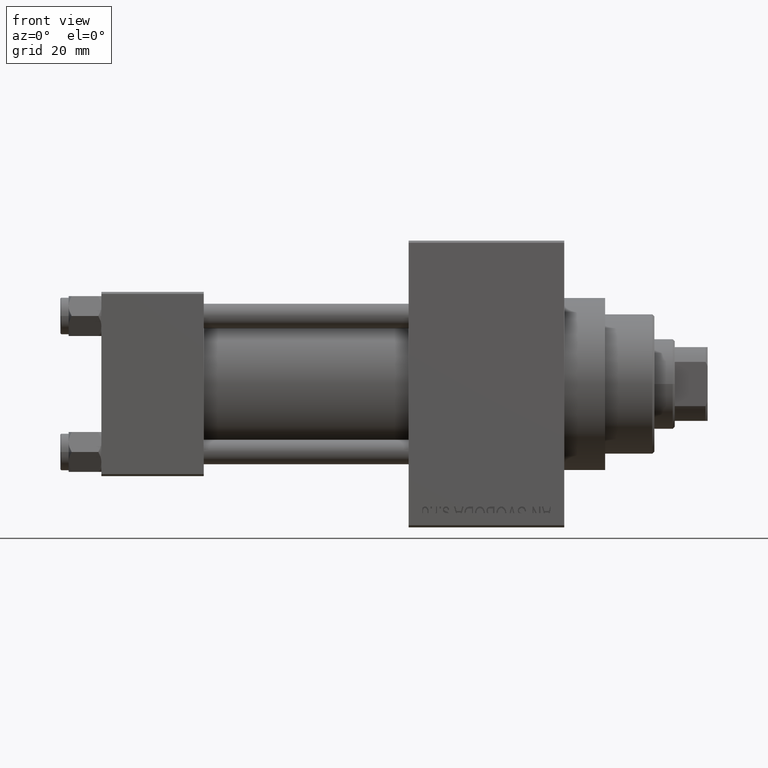
[diagram: clean part render]
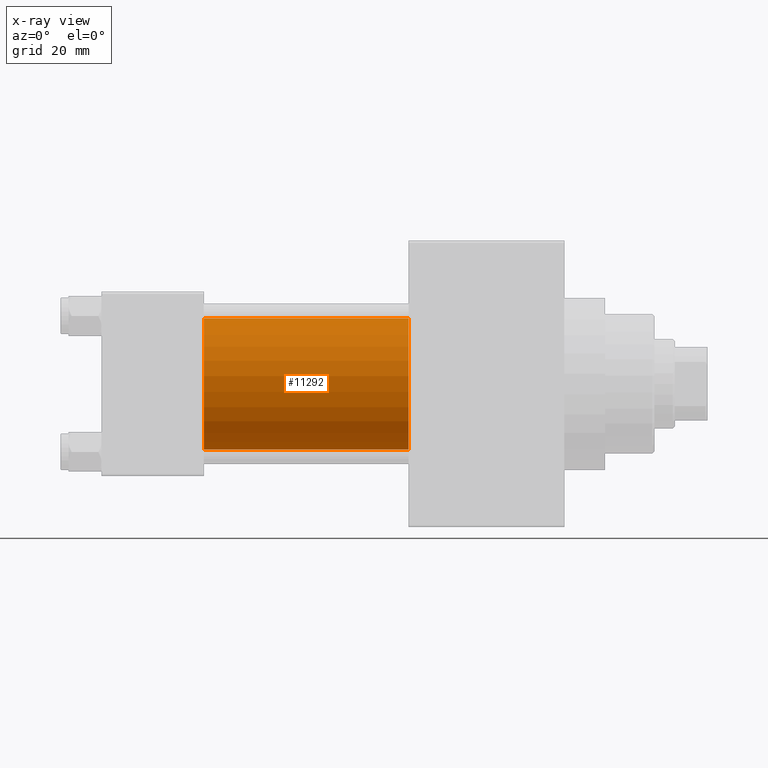
[diagram: x-ray — body ghosted, one internal face saturated and labeled with its STEP entity id]
A machine part, front view, then the same camera in x-ray: the body is ghosted and one INTERNAL B-rep face — a face not visible from any outside direction — is saturated and labeled: STEP entity #11292.
In plain terms, the highlighted cylindrical surface (partial cylindrical patch) has radius 16 mm, axis along (-1, -0, -0).
Its self-contained STEP definition (entity closure, byte-faithful):
#927 = ORIENTED_EDGE ( 'NONE', *, *, #46909, .T. ) ;
#1263 = DIRECTION ( 'NONE',  ( 0.000000000000000000, 0.000000000000000000, -1.000000000000000000 ) ) ;
#4973 = LINE ( 'NONE', #5207, #19928 ) ;
#5207 = CARTESIAN_POINT ( 'NONE',  ( 75.00000000000001421, -2.602085213965210642E-15, 16.00000000000000000 ) ) ;
#5935 = EDGE_LOOP ( 'NONE', ( #927, #38438, #33629, #37015 ) ) ;
#6701 = CARTESIAN_POINT ( 'NONE',  ( 75.00000000000001421, -2.602085213965210642E-15, 16.00000000000000000 ) ) ;
#7612 = DIRECTION ( 'NONE',  ( -1.000000000000000000, -0.000000000000000000, -0.000000000000000000 ) ) ;
#8815 = DIRECTION ( 'NONE',  ( 0.000000000000000000, 0.000000000000000000, 1.000000000000000000 ) ) ;
#11292 = ADVANCED_FACE ( 'NONE', ( #16439 ), #30979, .F. ) ;
#14386 = EDGE_CURVE ( 'NONE', #19520, #23885, #4973, .T. ) ;
#16054 = AXIS2_PLACEMENT_3D ( 'NONE', #26692, #41262, #8815 ) ;
#16439 = FACE_OUTER_BOUND ( 'NONE', #5935, .T. ) ;
#18968 = VERTEX_POINT ( 'NONE', #31952 ) ;
#19520 = VERTEX_POINT ( 'NONE', #6701 ) ;
#19750 = DIRECTION ( 'NONE',  ( -1.000000000000000000, -0.000000000000000000, -0.000000000000000000 ) ) ;
#19928 = VECTOR ( 'NONE', #19750, 1000.000000000000000 ) ;
#23445 = AXIS2_PLACEMENT_3D ( 'NONE', #40163, #34872, #45373 ) ;
#23885 = VERTEX_POINT ( 'NONE', #35308 ) ;
#24070 = EDGE_CURVE ( 'NONE', #18968, #32175, #29293, .T. ) ;
#25727 = CIRCLE ( 'NONE', #30286, 16.00000000000000000 ) ;
#26692 = CARTESIAN_POINT ( 'NONE',  ( 75.00000000000001421, -2.602085213965210642E-15, 0.000000000000000000 ) ) ;
#29293 = LINE ( 'NONE', #40295, #40701 ) ;
#29748 = EDGE_CURVE ( 'NONE', #23885, #32175, #25727, .T. ) ;
#30286 = AXIS2_PLACEMENT_3D ( 'NONE', #31052, #33924, #1263 ) ;
#30979 = CYLINDRICAL_SURFACE ( 'NONE', #16054, 16.00000000000000000 ) ;
#31052 = CARTESIAN_POINT ( 'NONE',  ( 25.00000000000000000, -2.602085213965210642E-15, 0.000000000000000000 ) ) ;
#31952 = CARTESIAN_POINT ( 'NONE',  ( 75.00000000000001421, -6.426503353294456087E-16, -16.00000000000000000 ) ) ;
#32175 = VERTEX_POINT ( 'NONE', #40035 ) ;
#33629 = ORIENTED_EDGE ( 'NONE', *, *, #29748, .F. ) ;
#33924 = DIRECTION ( 'NONE',  ( 1.000000000000000000, 0.000000000000000000, 0.000000000000000000 ) ) ;
#34097 = CIRCLE ( 'NONE', #23445, 16.00000000000000000 ) ;
#34872 = DIRECTION ( 'NONE',  ( 1.000000000000000000, 0.000000000000000000, 0.000000000000000000 ) ) ;
#35308 = CARTESIAN_POINT ( 'NONE',  ( 25.00000000000000000, -2.602085213965210642E-15, 16.00000000000000000 ) ) ;
#37015 = ORIENTED_EDGE ( 'NONE', *, *, #14386, .F. ) ;
#38438 = ORIENTED_EDGE ( 'NONE', *, *, #24070, .T. ) ;
#40035 = CARTESIAN_POINT ( 'NONE',  ( 25.00000000000000000, -6.426503353294456087E-16, -16.00000000000000000 ) ) ;
#40163 = CARTESIAN_POINT ( 'NONE',  ( 75.00000000000001421, -2.602085213965210642E-15, 0.000000000000000000 ) ) ;
#40295 = CARTESIAN_POINT ( 'NONE',  ( 75.00000000000001421, -6.426503353294456087E-16, -16.00000000000000000 ) ) ;
#40701 = VECTOR ( 'NONE', #7612, 1000.000000000000000 ) ;
#41262 = DIRECTION ( 'NONE',  ( -1.000000000000000000, -0.000000000000000000, -0.000000000000000000 ) ) ;
#45373 = DIRECTION ( 'NONE',  ( 0.000000000000000000, 0.000000000000000000, -1.000000000000000000 ) ) ;
#46909 = EDGE_CURVE ( 'NONE', #19520, #18968, #34097, .T. ) ;